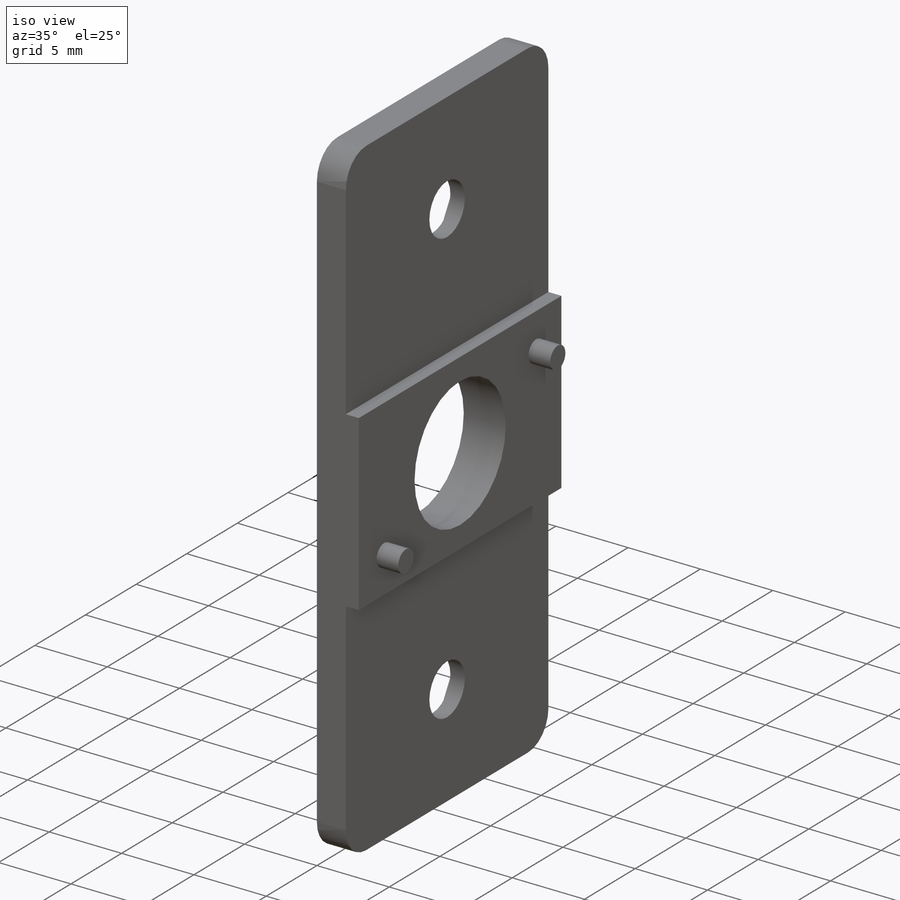
[diagram: iso view]
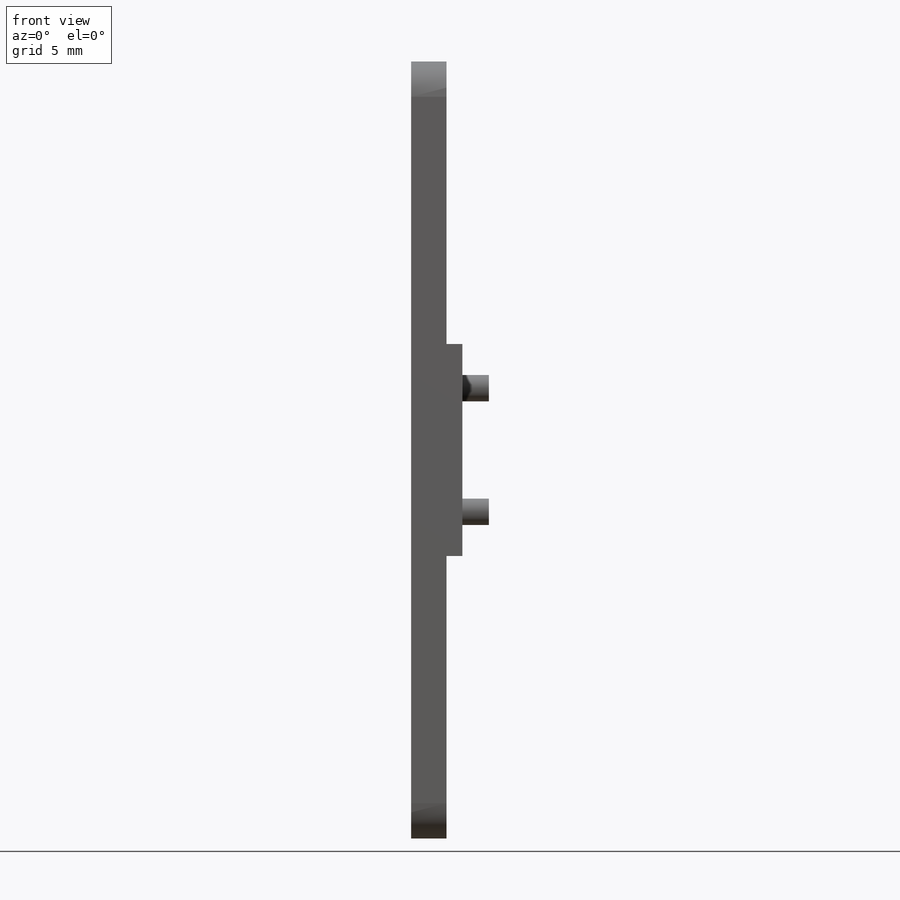
[diagram: front view]
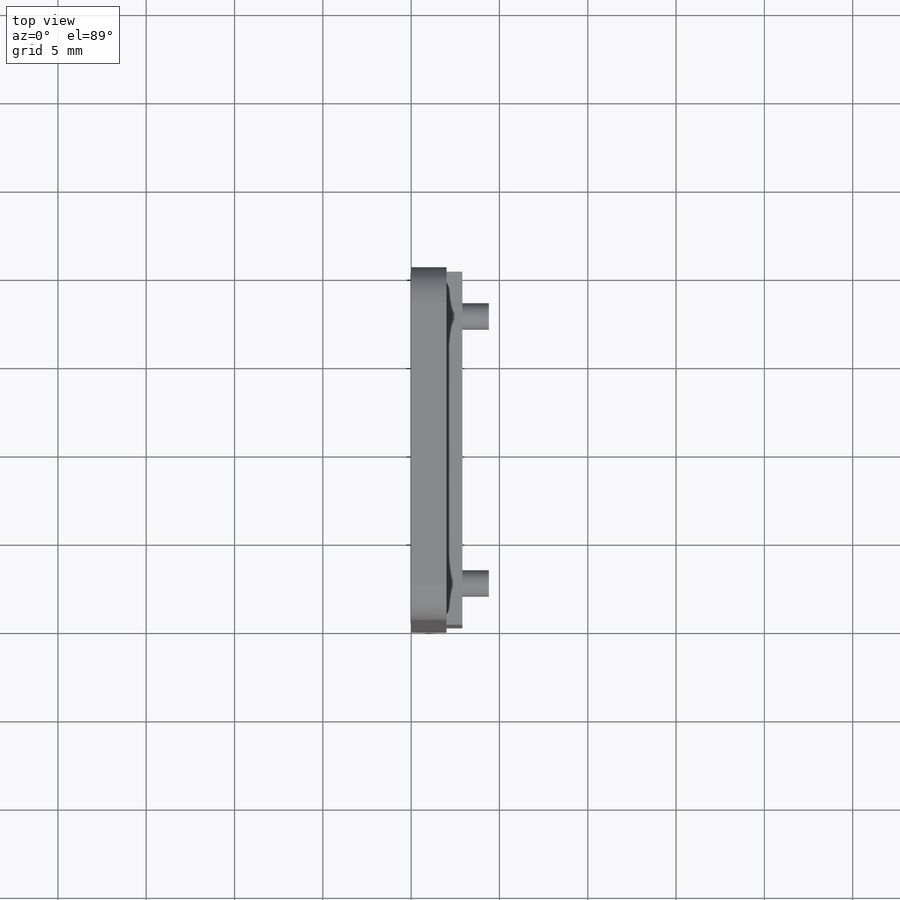
[diagram: top view]
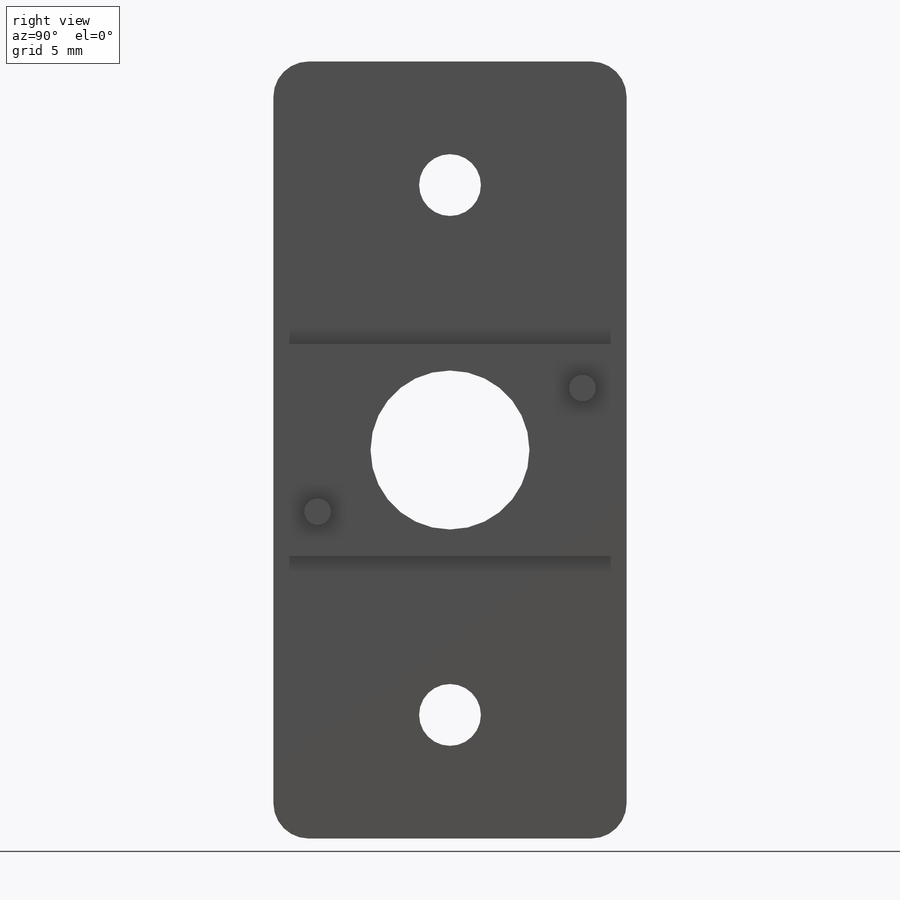
[diagram: right view]
SOLIDWORKS PART (.sldprt)
format: sldprt  version: not decoded by parser v0  size: 201,728 bytes
history: native  units: mm
features: sketch x4, extrude x2, cut_extrude x2, material x1, fillet x1 (+11 scaffold rows collapsed)
feature tree (21):
  scaffold x11  (default folders/planes/origin — collapsed)
  material  "Material <not specified>"
  sketch  "Sketch1"  dims[D1=2.0mm D2=44.0mm D3=12.0mm D4=0.9mm]
  extrude  "Boss-Extrude1"  Depth=20mm
  sketch  "Sketch2"  dims[D3=9.0mm D4=3.5mm D5=3.5mm D1=7.0mm D2=7.0mm]
  cut_extrude  "Cut-Extrude1"  [1 undecoded]
  sketch  "Sketch3"  dims[c1.D5=1.5mm c1.D6=1.5mm c1.D1=2.5mm c1.D2=2.5mm c1.D3=2.5mm c1.D4=2.5mm c2.D1=2.5mm c2.D4=2.5mm]
  extrude  "Boss-Extrude2"  Depth=1.5mm
  fillet  "Fillet1"  Radius=2mm
  sketch  "Sketch4"  dims[D1=6.5mm D2=6.5mm]
  cut_extrude  "Cut-Extrude2"  Depth=1mm
decode coverage: 8 of 9 modeling features carry decoded parameters
note: 1 parameter value undecoded
note: suppression state not decoded; provenance and decode notes live in map.json
